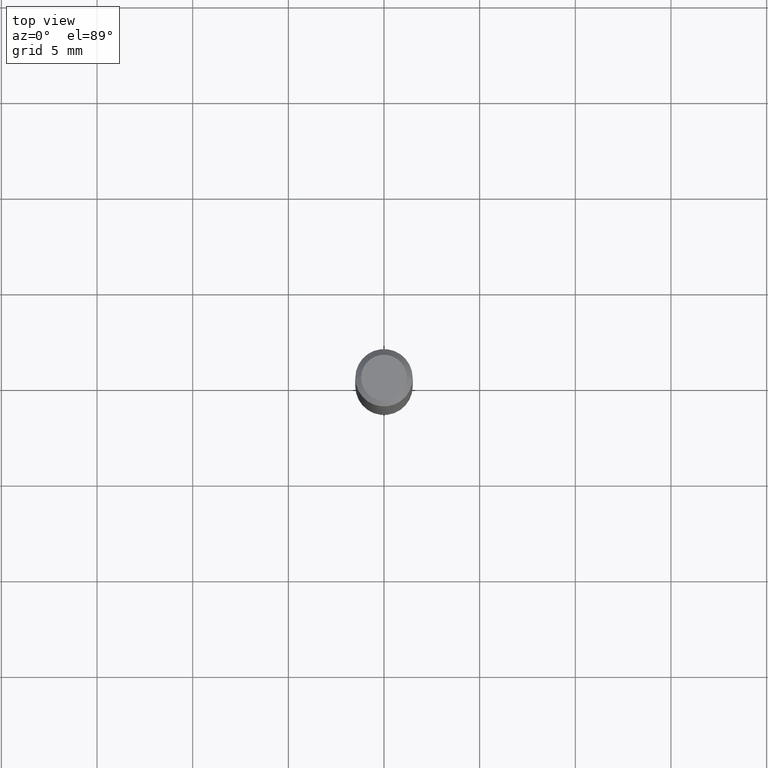
[diagram: clean part render]
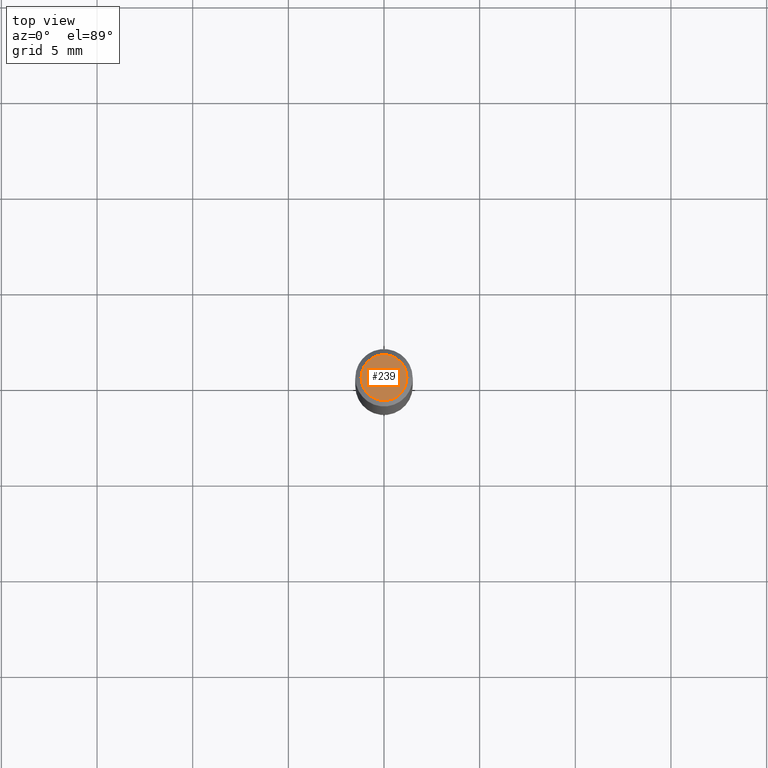
[diagram: same view with one face highlighted and labeled with its STEP entity id]
A machine part, top view. The second image highlights one B-rep face of the part: STEP entity #239.
In plain terms, the highlighted planar face has unit normal (0, -0, -1).
Its self-contained STEP definition (entity closure, byte-faithful):
#1 = EDGE_LOOP ( 'NONE', ( #242, #339 ) ) ;
#10 = CARTESIAN_POINT ( 'NONE',  ( -0.04724000000000000421, 3.504923541997677355E-16, -3.380025165670481712E-19 ) ) ;
#28 = CARTESIAN_POINT ( 'NONE',  ( 0.04724000000000000421, -3.852183633974369838E-16, -3.380025165621689721E-19 ) ) ;
#63 = DIRECTION ( 'NONE',  ( 1.000000000000000000, -6.982962677686266711E-15, 4.876185090822587894E-29 ) ) ;
#113 = DIRECTION ( 'NONE',  ( -1.000000000000000000, 6.982962677686265922E-15, -4.876176775795935793E-29 ) ) ;
#158 = FACE_OUTER_BOUND ( 'NONE', #1, .T. ) ;
#176 = EDGE_CURVE ( 'NONE', #452, #391, #232, .T. ) ;
#214 = EDGE_CURVE ( 'NONE', #391, #452, #297, .T. ) ;
#232 = CIRCLE ( 'NONE', #480, 0.04724000000000000421 ) ;
#239 = ADVANCED_FACE ( 'NONE', ( #158 ), #354, .F. ) ;
#242 = ORIENTED_EDGE ( 'NONE', *, *, #176, .T. ) ;
#256 = DIRECTION ( 'NONE',  ( -2.445468806185136597E-29, 3.491481338843145583E-15, 1.000000000000000000 ) ) ;
#291 = AXIS2_PLACEMENT_3D ( 'NONE', #414, #256, #356 ) ;
#297 = CIRCLE ( 'NONE', #291, 0.04724000000000000421 ) ;
#339 = ORIENTED_EDGE ( 'NONE', *, *, #214, .T. ) ;
#354 = PLANE ( 'NONE',  #404 ) ;
#356 = DIRECTION ( 'NONE',  ( 1.000000000000000000, -6.982962677686266711E-15, 4.876185090822587894E-29 ) ) ;
#391 = VERTEX_POINT ( 'NONE', #28 ) ;
#404 = AXIS2_PLACEMENT_3D ( 'NONE', #468, #433, #113 ) ;
#414 = CARTESIAN_POINT ( 'NONE',  ( 8.265746106709734507E-48, -1.180129479067563789E-33, -3.380025165646692144E-19 ) ) ;
#421 = CARTESIAN_POINT ( 'NONE',  ( 8.265746106709734507E-48, -1.180129479067563789E-33, -3.380025165646692144E-19 ) ) ;
#433 = DIRECTION ( 'NONE',  ( 2.438088387897960049E-29, -3.491481338843145188E-15, -1.000000000000000000 ) ) ;
#452 = VERTEX_POINT ( 'NONE', #10 ) ;
#460 = DIRECTION ( 'NONE',  ( -2.445468806185136597E-29, 3.491481338843145583E-15, 1.000000000000000000 ) ) ;
#468 = CARTESIAN_POINT ( 'NONE',  ( 4.132873053354867254E-48, -5.900647395337818946E-34, -1.690012582823346072E-19 ) ) ;
#480 = AXIS2_PLACEMENT_3D ( 'NONE', #421, #460, #63 ) ;